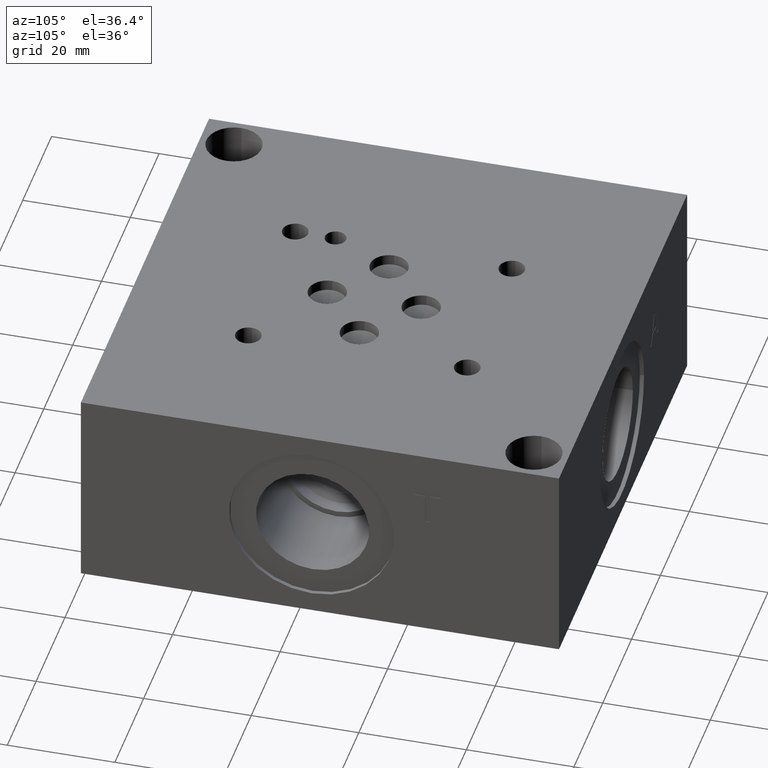
[diagram: clean part render]
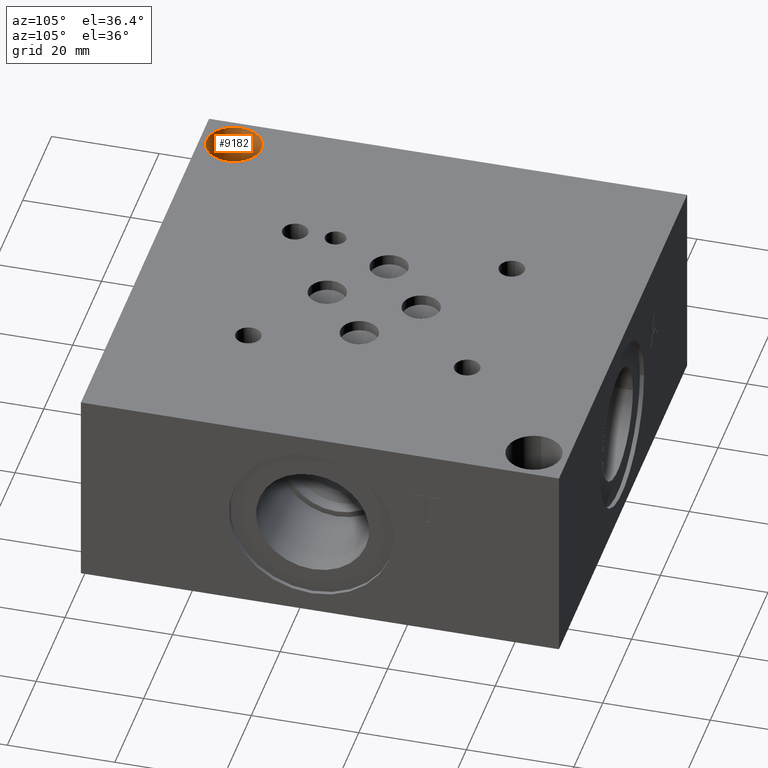
[diagram: same view with one face highlighted and labeled with its STEP entity id]
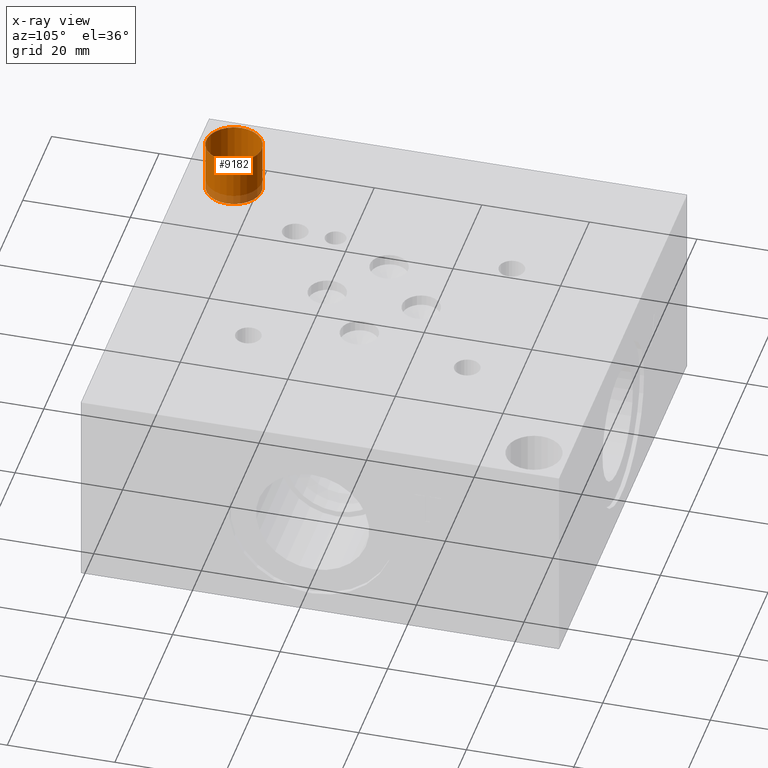
[diagram: x-ray of the same camera — body ghosted, the highlighted face saturated]
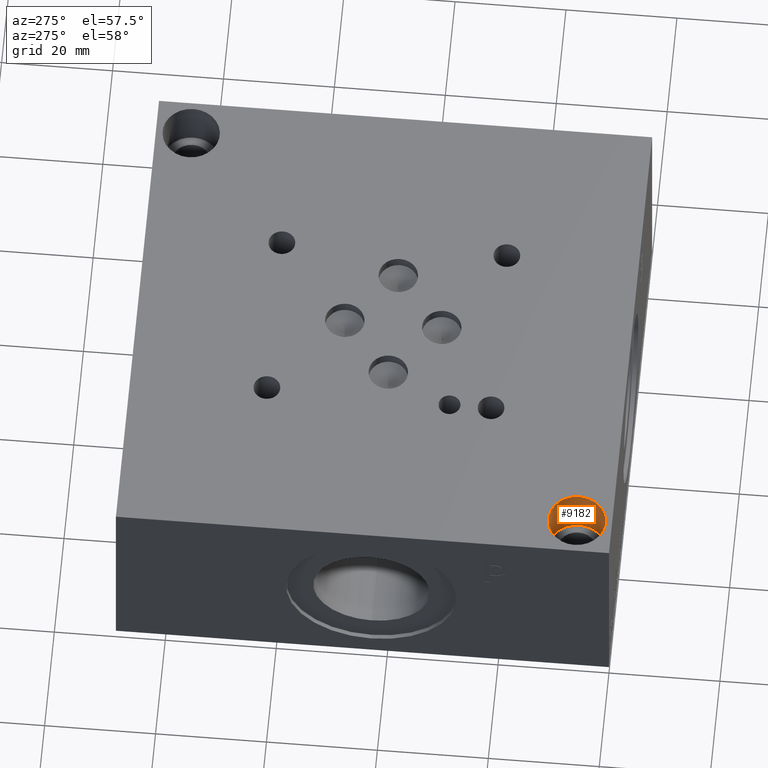
[diagram: same view with one face highlighted and labeled with its STEP entity id]
A machine part, auxiliary view. The second image highlights one B-rep face of the part: STEP entity #9182.
The next image is the same camera in x-ray: the body ghosted, the highlighted face saturated — about 12% of this face is hidden behind the body in this view.
A second angle (auxiliary view) of the same face is appended — the face is thin or edge-on in the first view.
In plain terms, the highlighted cylindrical surface (bore or boss wall) has radius 5.1562 mm, axis along (0, 0, 1).
Its self-contained STEP definition (entity closure, byte-faithful):
#32=CYLINDRICAL_SURFACE('',#9593,5.1562);
#132=CIRCLE('',#9590,5.1562);
#133=CIRCLE('',#9591,5.1562);
#135=CIRCLE('',#9594,5.1562);
#136=CIRCLE('',#9595,5.1562);
#963=FACE_OUTER_BOUND('',#1479,.T.);
#1479=EDGE_LOOP('',(#8026,#8027,#8028,#8029,#8030,#8031));
#2370=LINE('',#15726,#3234);
#3234=VECTOR('',#11250,5.1562);
#4348=VERTEX_POINT('',#15715);
#4349=VERTEX_POINT('',#15716);
#4351=VERTEX_POINT('',#15722);
#4352=VERTEX_POINT('',#15723);
#5601=EDGE_CURVE('',#4348,#4349,#132,.T.);
#5602=EDGE_CURVE('',#4349,#4348,#133,.T.);
#5604=EDGE_CURVE('',#4351,#4352,#135,.T.);
#5605=EDGE_CURVE('',#4352,#4351,#136,.T.);
#5606=EDGE_CURVE('',#4352,#4349,#2370,.T.);
#8026=ORIENTED_EDGE('',*,*,#5604,.F.);
#8027=ORIENTED_EDGE('',*,*,#5605,.F.);
#8028=ORIENTED_EDGE('',*,*,#5606,.T.);
#8029=ORIENTED_EDGE('',*,*,#5601,.F.);
#8030=ORIENTED_EDGE('',*,*,#5602,.F.);
#8031=ORIENTED_EDGE('',*,*,#5606,.F.);
#9182=ADVANCED_FACE('',(#963),#32,.F.);
#9590=AXIS2_PLACEMENT_3D('',#15717,#11238,#11239);
#9591=AXIS2_PLACEMENT_3D('',#15718,#11240,#11241);
#9593=AXIS2_PLACEMENT_3D('',#15721,#11244,#11245);
#9594=AXIS2_PLACEMENT_3D('',#15724,#11246,#11247);
#9595=AXIS2_PLACEMENT_3D('',#15725,#11248,#11249);
#11238=DIRECTION('center_axis',(0.,0.,1.));
#11239=DIRECTION('ref_axis',(1.,0.,0.));
#11240=DIRECTION('center_axis',(0.,0.,1.));
#11241=DIRECTION('ref_axis',(1.,0.,0.));
#11244=DIRECTION('center_axis',(0.,0.,1.));
#11245=DIRECTION('ref_axis',(1.,0.,0.));
#11246=DIRECTION('center_axis',(0.,0.,-1.));
#11247=DIRECTION('ref_axis',(1.,0.,0.));
#11248=DIRECTION('center_axis',(0.,0.,-1.));
#11249=DIRECTION('ref_axis',(1.,0.,0.));
#11250=DIRECTION('',(0.,0.,-1.));
#15715=CARTESIAN_POINT('',(11.5062,6.35,28.575));
#15716=CARTESIAN_POINT('',(1.1938,6.35,28.575));
#15717=CARTESIAN_POINT('Origin',(6.35,6.35,28.575));
#15718=CARTESIAN_POINT('Origin',(6.35,6.35,28.575));
#15721=CARTESIAN_POINT('Origin',(6.35,6.35,33.3375));
#15722=CARTESIAN_POINT('',(11.5062,6.35,38.1));
#15723=CARTESIAN_POINT('',(1.1938,6.35,38.1));
#15724=CARTESIAN_POINT('Origin',(6.35,6.35,38.1));
#15725=CARTESIAN_POINT('Origin',(6.35,6.35,38.1));
#15726=CARTESIAN_POINT('',(1.1938,6.35,33.3375));